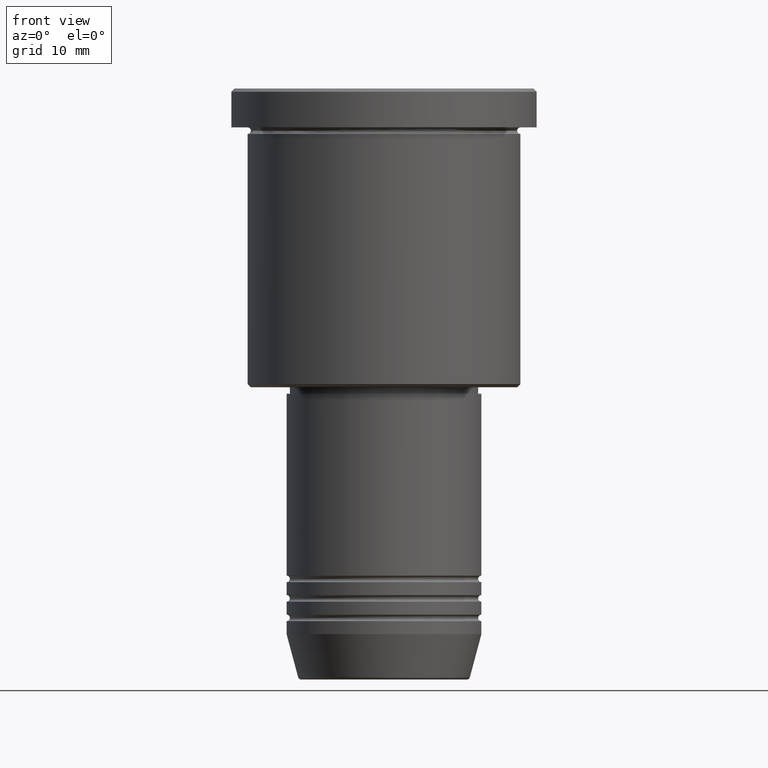
[diagram: clean part render]
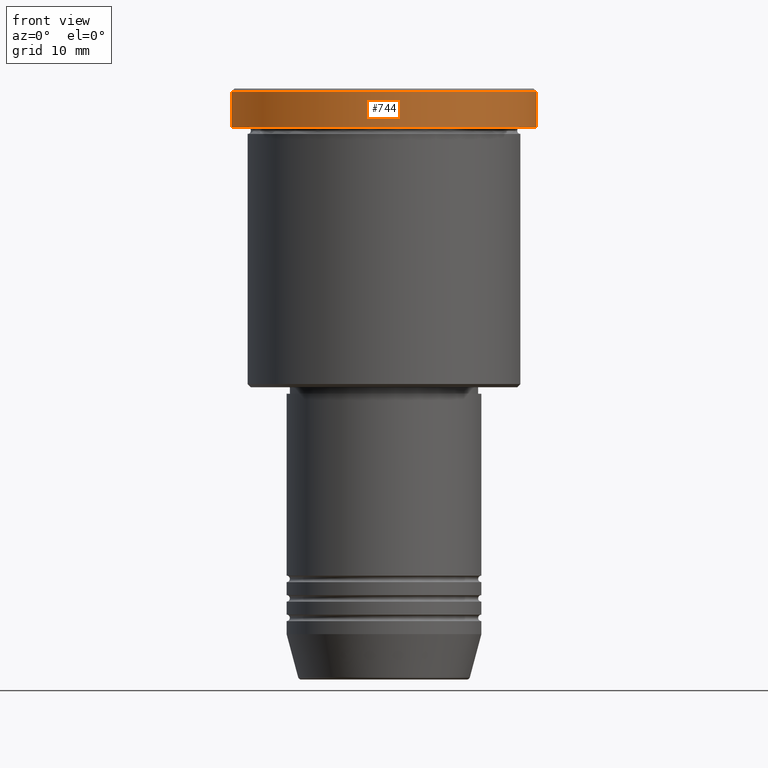
[diagram: same view with one face highlighted and labeled with its STEP entity id]
A machine part, front view. The second image highlights one B-rep face of the part: STEP entity #744.
In plain terms, the highlighted cylindrical surface (partial cylindrical patch) has radius 23.5 mm, axis along (-0, -0, 1).
Its self-contained STEP definition (entity closure, byte-faithful):
#5 = FACE_OUTER_BOUND ( 'NONE', #143, .T. ) ;
#9 = CIRCLE ( 'NONE', #409, 23.50000000000000000 ) ;
#50 = CARTESIAN_POINT ( 'NONE',  ( 23.50000000000000000, 0.000000000000000000, -5.999999999999994671 ) ) ;
#100 = VERTEX_POINT ( 'NONE', #921 ) ;
#141 = DIRECTION ( 'NONE',  ( 1.000000000000000000, 0.000000000000000000, 0.000000000000000000 ) ) ;
#143 = EDGE_LOOP ( 'NONE', ( #762, #1021, #992, #756 ) ) ;
#146 = CARTESIAN_POINT ( 'NONE',  ( 23.50000000000000000, 0.000000000000000000, -0.5000000000000143219 ) ) ;
#236 = DIRECTION ( 'NONE',  ( -0.000000000000000000, -0.000000000000000000, 1.000000000000000000 ) ) ;
#245 = CARTESIAN_POINT ( 'NONE',  ( 0.000000000000000000, 0.000000000000000000, -0.5000000000000143219 ) ) ;
#321 = VECTOR ( 'NONE', #976, 1000.000000000000000 ) ;
#327 = DIRECTION ( 'NONE',  ( 0.000000000000000000, 0.000000000000000000, -1.000000000000000000 ) ) ;
#385 = EDGE_CURVE ( 'NONE', #456, #100, #615, .T. ) ;
#409 = AXIS2_PLACEMENT_3D ( 'NONE', #245, #327, #141 ) ;
#446 = AXIS2_PLACEMENT_3D ( 'NONE', #625, #638, #1160 ) ;
#456 = VERTEX_POINT ( 'NONE', #668 ) ;
#469 = DIRECTION ( 'NONE',  ( -0.000000000000000000, -0.000000000000000000, 1.000000000000000000 ) ) ;
#502 = LINE ( 'NONE', #582, #698 ) ;
#582 = CARTESIAN_POINT ( 'NONE',  ( 23.50000000000000000, 0.000000000000000000, 0.000000000000000000 ) ) ;
#615 = LINE ( 'NONE', #966, #321 ) ;
#625 = CARTESIAN_POINT ( 'NONE',  ( 0.000000000000000000, 0.000000000000000000, -5.999999999999994671 ) ) ;
#632 = EDGE_CURVE ( 'NONE', #842, #100, #9, .T. ) ;
#638 = DIRECTION ( 'NONE',  ( -0.000000000000000000, -0.000000000000000000, 1.000000000000000000 ) ) ;
#641 = CARTESIAN_POINT ( 'NONE',  ( 0.000000000000000000, 0.000000000000000000, 0.000000000000000000 ) ) ;
#668 = CARTESIAN_POINT ( 'NONE',  ( -23.50000000000000000, 2.877919977996280320E-15, -5.999999999999994671 ) ) ;
#698 = VECTOR ( 'NONE', #236, 1000.000000000000000 ) ;
#744 = ADVANCED_FACE ( 'NONE', ( #5 ), #925, .T. ) ;
#753 = AXIS2_PLACEMENT_3D ( 'NONE', #641, #469, #989 ) ;
#756 = ORIENTED_EDGE ( 'NONE', *, *, #632, .T. ) ;
#762 = ORIENTED_EDGE ( 'NONE', *, *, #385, .F. ) ;
#829 = EDGE_CURVE ( 'NONE', #1164, #842, #502, .T. ) ;
#842 = VERTEX_POINT ( 'NONE', #146 ) ;
#851 = CIRCLE ( 'NONE', #446, 23.50000000000000000 ) ;
#921 = CARTESIAN_POINT ( 'NONE',  ( -23.50000000000000000, 2.877919977996280320E-15, -0.5000000000000143219 ) ) ;
#925 = CYLINDRICAL_SURFACE ( 'NONE', #753, 23.50000000000000000 ) ;
#966 = CARTESIAN_POINT ( 'NONE',  ( -23.50000000000000000, 2.877919977996280320E-15, 0.000000000000000000 ) ) ;
#976 = DIRECTION ( 'NONE',  ( -0.000000000000000000, -0.000000000000000000, 1.000000000000000000 ) ) ;
#989 = DIRECTION ( 'NONE',  ( 1.000000000000000000, 0.000000000000000000, 0.000000000000000000 ) ) ;
#992 = ORIENTED_EDGE ( 'NONE', *, *, #829, .T. ) ;
#1021 = ORIENTED_EDGE ( 'NONE', *, *, #1042, .T. ) ;
#1042 = EDGE_CURVE ( 'NONE', #456, #1164, #851, .T. ) ;
#1160 = DIRECTION ( 'NONE',  ( 1.000000000000000000, 0.000000000000000000, 0.000000000000000000 ) ) ;
#1164 = VERTEX_POINT ( 'NONE', #50 ) ;